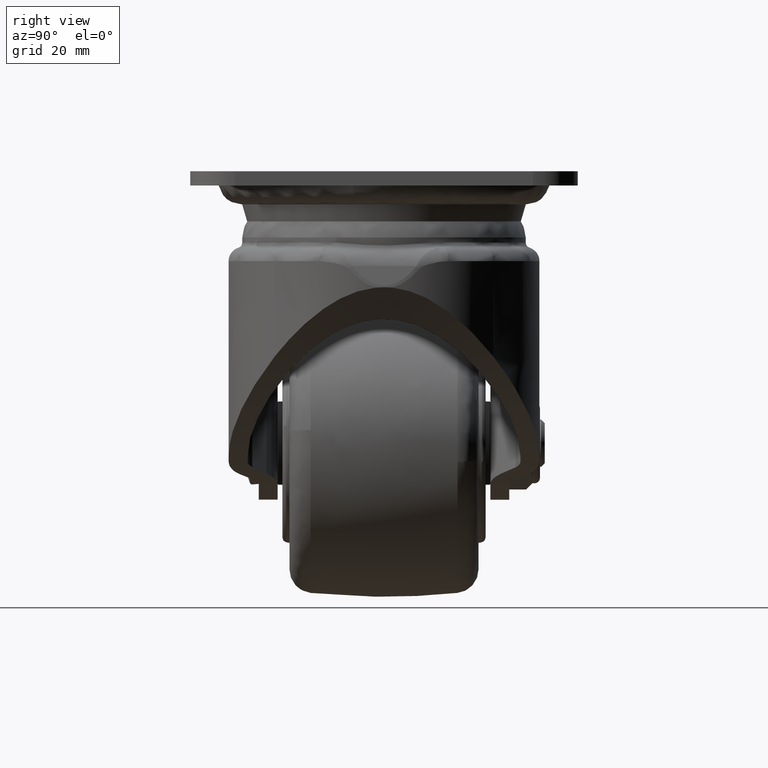
[diagram: clean part render]
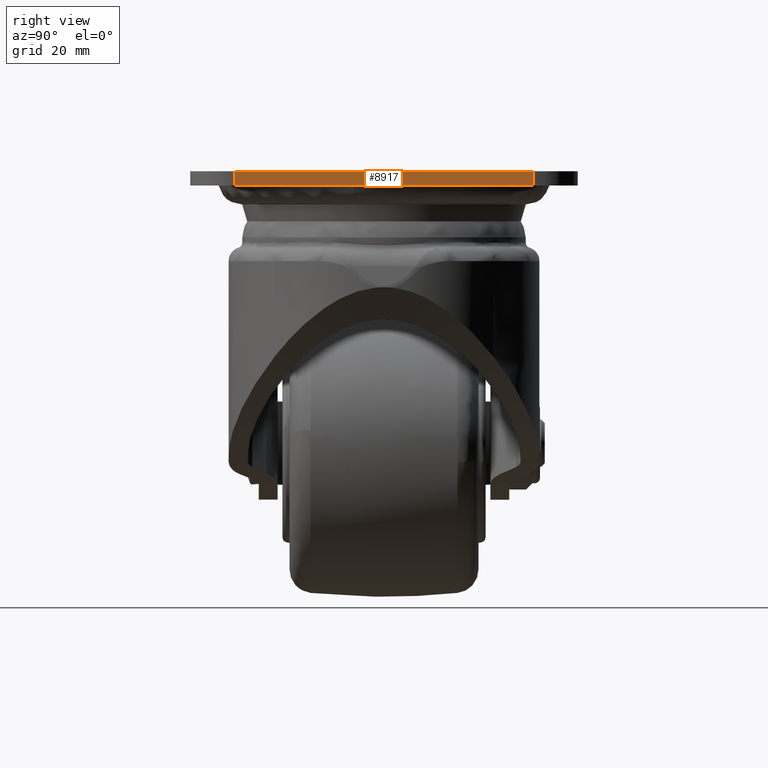
[diagram: same view with one face highlighted and labeled with its STEP entity id]
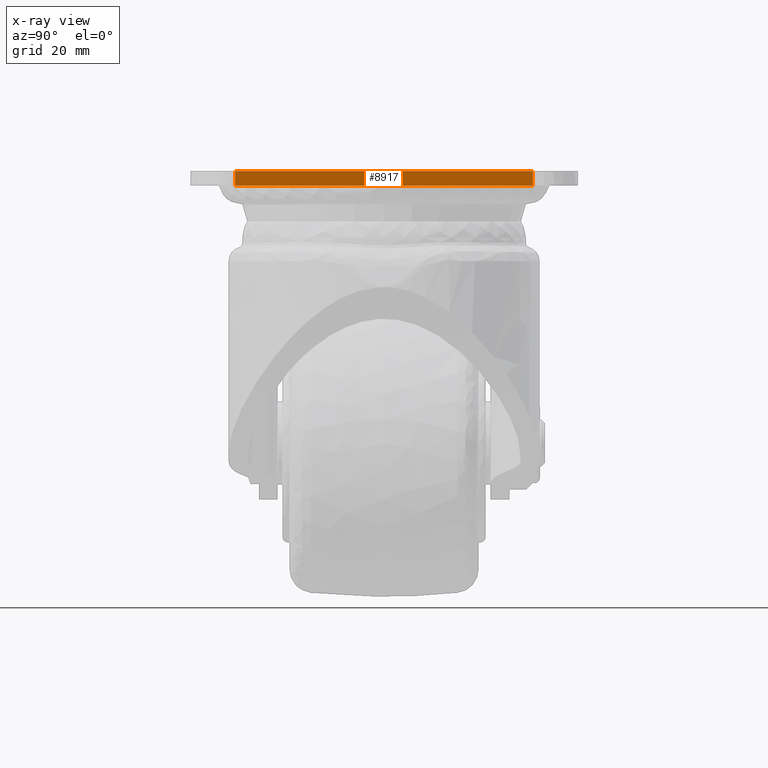
[diagram: x-ray of the same camera — body ghosted, the highlighted face saturated]
A machine part, right view. The second image highlights one B-rep face of the part: STEP entity #8917.
The next image is the same camera in x-ray: the body ghosted, the highlighted face saturated — about 0% of this face is hidden behind the body in this view.
In plain terms, the highlighted face is a freeform B-spline surface patch.
Its self-contained STEP definition (entity closure, byte-faithful):
#8767=CARTESIAN_POINT('',(63.0,-31.499996683874201,57.500000000000000));
#8768=VERTEX_POINT('',#8767);
#8783=CARTESIAN_POINT('',(63.0,31.500000000000000,57.500000000000000));
#8784=VERTEX_POINT('',#8783);
#8785=CARTESIAN_POINT('',(63.0,-31.499996683874201,57.500000000000000));
#8786=CARTESIAN_POINT('',(63.0,31.500000000000000,57.500000000000000));
#8787=QUASI_UNIFORM_CURVE('',1,(#8785,#8786),.UNSPECIFIED.,.F.,.U.);
#8788=EDGE_CURVE('',#8768,#8784,#8787,.T.);
#8862=CARTESIAN_POINT('',(63.0,31.500000000000000,54.500000000000000));
#8863=VERTEX_POINT('',#8862);
#8888=CARTESIAN_POINT('',(63.0,31.500000000000000,57.500000000000000));
#8889=CARTESIAN_POINT('',(63.0,31.500000000000000,54.500000000000000));
#8890=QUASI_UNIFORM_CURVE('',1,(#8888,#8889),.UNSPECIFIED.,.F.,.U.);
#8891=EDGE_CURVE('',#8784,#8863,#8890,.T.);
#8896=CARTESIAN_POINT('',(63.0,-34.646846396127501,54.350150005814577));
#8897=CARTESIAN_POINT('',(63.0,-34.646846396127501,57.649850074651702));
#8898=CARTESIAN_POINT('',(63.0,34.646851402044881,54.350150005814577));
#8899=CARTESIAN_POINT('',(63.0,34.646851402044881,57.649850074651688));
#8900=B_SPLINE_SURFACE_WITH_KNOTS('',1,1,((#8896,#8898),(#8897,#8899)),.UNSPECIFIED.,.F.,.F.,.U.,(2,2),(2,2),(0.0,3.299700068837119),(0.0,69.293697798172389),.UNSPECIFIED.);
#8901=CARTESIAN_POINT('',(63.0,-31.499996683874201,54.500000000000000));
#8902=VERTEX_POINT('',#8901);
#8903=CARTESIAN_POINT('',(63.0,-31.499996683874201,54.500000000000000));
#8904=CARTESIAN_POINT('',(63.0,31.500000000000000,54.500000000000000));
#8905=QUASI_UNIFORM_CURVE('',1,(#8903,#8904),.UNSPECIFIED.,.F.,.U.);
#8906=EDGE_CURVE('',#8902,#8863,#8905,.T.);
#8907=ORIENTED_EDGE('',*,*,#8906,.T.);
#8908=ORIENTED_EDGE('',*,*,#8891,.F.);
#8909=ORIENTED_EDGE('',*,*,#8788,.F.);
#8910=CARTESIAN_POINT('',(63.0,-31.499996683874201,57.500000000000000));
#8911=CARTESIAN_POINT('',(63.0,-31.499996683874201,54.500000000000000));
#8912=QUASI_UNIFORM_CURVE('',1,(#8910,#8911),.UNSPECIFIED.,.F.,.U.);
#8913=EDGE_CURVE('',#8768,#8902,#8912,.T.);
#8914=ORIENTED_EDGE('',*,*,#8913,.T.);
#8915=EDGE_LOOP('',(#8907,#8908,#8909,#8914));
#8916=FACE_OUTER_BOUND('',#8915,.T.);
#8917=ADVANCED_FACE('',(#8916),#8900,.F.);